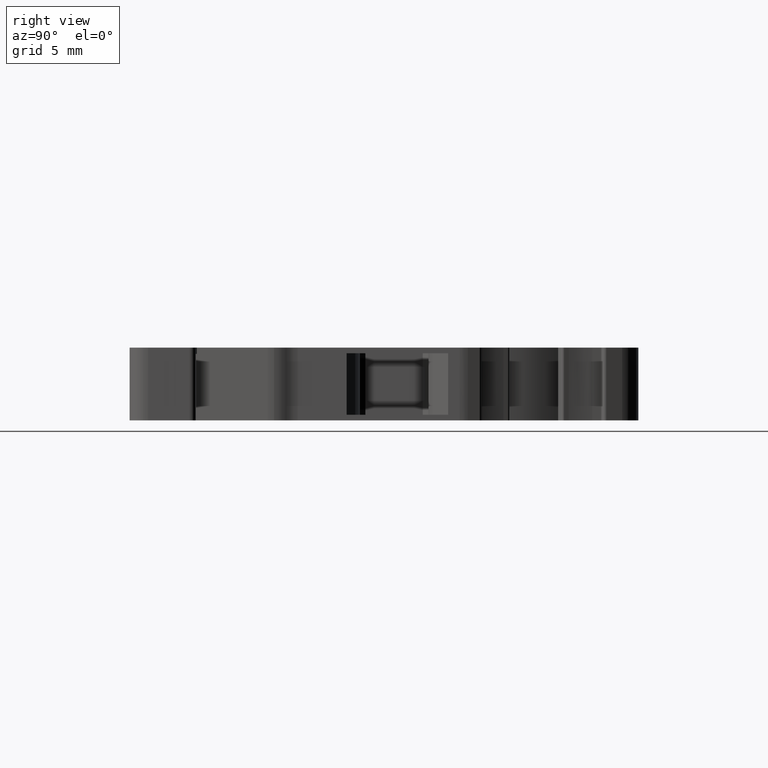
[diagram: clean part render]
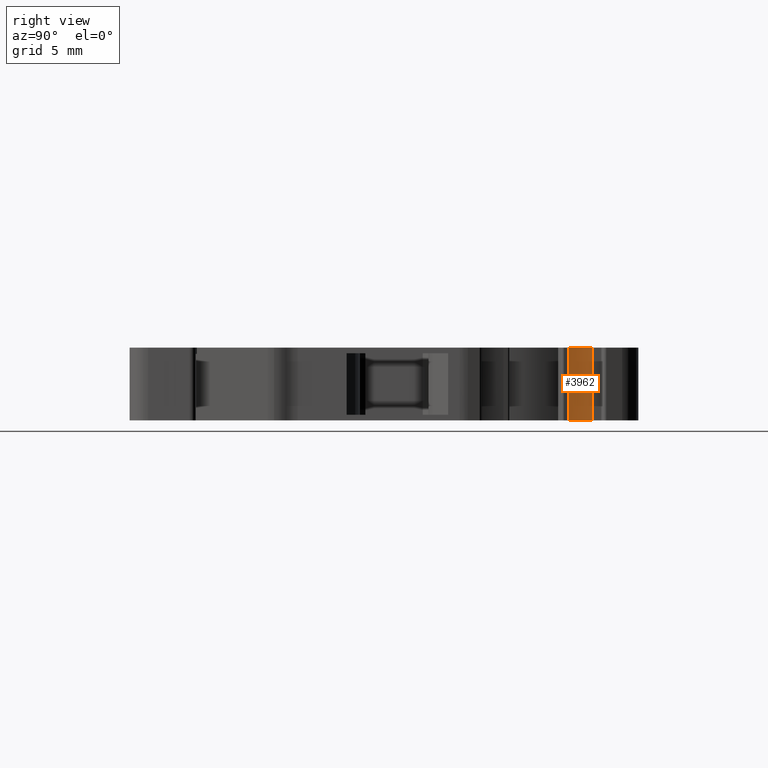
[diagram: same view with one face highlighted and labeled with its STEP entity id]
A machine part, right view. The second image highlights one B-rep face of the part: STEP entity #3962.
In plain terms, the highlighted cylindrical surface (partial cylindrical patch) has radius 7.5 mm, axis along (0, 0, 1).
Its self-contained STEP definition (entity closure, byte-faithful):
#97 = EDGE_LOOP ( 'NONE', ( #6397, #6374, #6377, #6413 ) ) ;
#771 = VERTEX_POINT ( 'NONE', #7100 ) ;
#798 = VERTEX_POINT ( 'NONE', #7129 ) ;
#904 = VERTEX_POINT ( 'NONE', #7235 ) ;
#906 = VERTEX_POINT ( 'NONE', #7190 ) ;
#969 = EDGE_CURVE ( 'NONE', #771, #906, #7782, .T. ) ;
#973 = EDGE_CURVE ( 'NONE', #904, #798, #7806, .T. ) ;
#1253 = VECTOR ( 'NONE', #7784, 1000.000000000000000 ) ;
#1300 = VECTOR ( 'NONE', #7802, 1000.000000000000000 ) ;
#1394 = AXIS2_PLACEMENT_3D ( 'NONE', #9858, #9864, #9856 ) ;
#1408 = CIRCLE ( 'NONE', #1394, 7.499998800195584200 ) ;
#1687 = AXIS2_PLACEMENT_3D ( 'NONE', #5695, #5696, #5645 ) ;
#3031 = CARTESIAN_POINT ( 'NONE',  ( 1700.987852795490400, 361.3676185082927100, -3.049999999943093800 ) ) ;
#3047 = CARTESIAN_POINT ( 'NONE',  ( 1700.930219829291400, 362.0233162883386100, -3.049999999943092000 ) ) ;
#3051 = CARTESIAN_POINT ( 'NONE',  ( 1701.129089496019600, 360.7304526625434300, -3.049999999943093800 ) ) ;
#3066 = CARTESIAN_POINT ( 'NONE',  ( 1701.353929930878800, 360.1118187510908200, -3.049999999943092500 ) ) ;
#3581 = EDGE_CURVE ( 'NONE', #798, #771, #1408, .T. ) ;
#3962 = ADVANCED_FACE ( 'NONE', ( #5680 ), #5658, .F. ) ;
#4394 = EDGE_CURVE ( 'NONE', #906, #904, #6550, .T. ) ;
#5645 = DIRECTION ( 'NONE',  ( 1.000000000000000000, 0.0000000000000000000, 0.0000000000000000000 ) ) ;
#5658 = CYLINDRICAL_SURFACE ( 'NONE', #1687, 7.499998800195584200 ) ;
#5680 = FACE_OUTER_BOUND ( 'NONE', #97, .T. ) ;
#5695 = CARTESIAN_POINT ( 'NONE',  ( 1708.401698109375000, 362.6767643070644500, -62.07273415799103600 ) ) ;
#5696 = DIRECTION ( 'NONE',  ( 0.0000000000000000000, 0.0000000000000000000, 1.000000000000000000 ) ) ;
#6374 = ORIENTED_EDGE ( 'NONE', *, *, #969, .F. ) ;
#6377 = ORIENTED_EDGE ( 'NONE', *, *, #3581, .F. ) ;
#6397 = ORIENTED_EDGE ( 'NONE', *, *, #4394, .F. ) ;
#6413 = ORIENTED_EDGE ( 'NONE', *, *, #973, .F. ) ;
#6550 = B_SPLINE_CURVE_WITH_KNOTS ( 'NONE', 3,
 ( #3047, #3031, #3051, #3066 ),
 .UNSPECIFIED., .F., .F.,
 ( 4, 4 ),
 ( 0.0000000000000000000, 1.000000000000000000 ),
 .UNSPECIFIED. ) ;
#7100 = CARTESIAN_POINT ( 'NONE',  ( 1700.930219829291400, 362.0233162883386100, 2.850000000059717200 ) ) ;
#7129 = CARTESIAN_POINT ( 'NONE',  ( 1701.353929930878800, 360.1118187510908200, 2.850000000059717200 ) ) ;
#7190 = CARTESIAN_POINT ( 'NONE',  ( 1700.930219829291400, 362.0233162883386100, -3.049999999943092000 ) ) ;
#7235 = CARTESIAN_POINT ( 'NONE',  ( 1701.353929930878800, 360.1118187510908200, -3.049999999943092500 ) ) ;
#7782 = LINE ( 'NONE', #7804, #1300 ) ;
#7784 = DIRECTION ( 'NONE',  ( 0.0000000000000000000, 0.0000000000000000000, 1.000000000000000000 ) ) ;
#7802 = DIRECTION ( 'NONE',  ( -0.0000000000000000000, -0.0000000000000000000, -1.000000000000000000 ) ) ;
#7804 = CARTESIAN_POINT ( 'NONE',  ( 1700.930219829291700, 362.0233162883386100, -62.07273415799103600 ) ) ;
#7806 = LINE ( 'NONE', #7807, #1253 ) ;
#7807 = CARTESIAN_POINT ( 'NONE',  ( 1701.353929930878600, 360.1118187510907100, -62.07273415799103600 ) ) ;
#9856 = DIRECTION ( 'NONE',  ( 1.000000000000000000, 0.0000000000000000000, 0.0000000000000000000 ) ) ;
#9858 = CARTESIAN_POINT ( 'NONE',  ( 1708.401698109375000, 362.6767643070644500, 2.850000000059714500 ) ) ;
#9864 = DIRECTION ( 'NONE',  ( -0.0000000000000000000, -0.0000000000000000000, -1.000000000000000000 ) ) ;